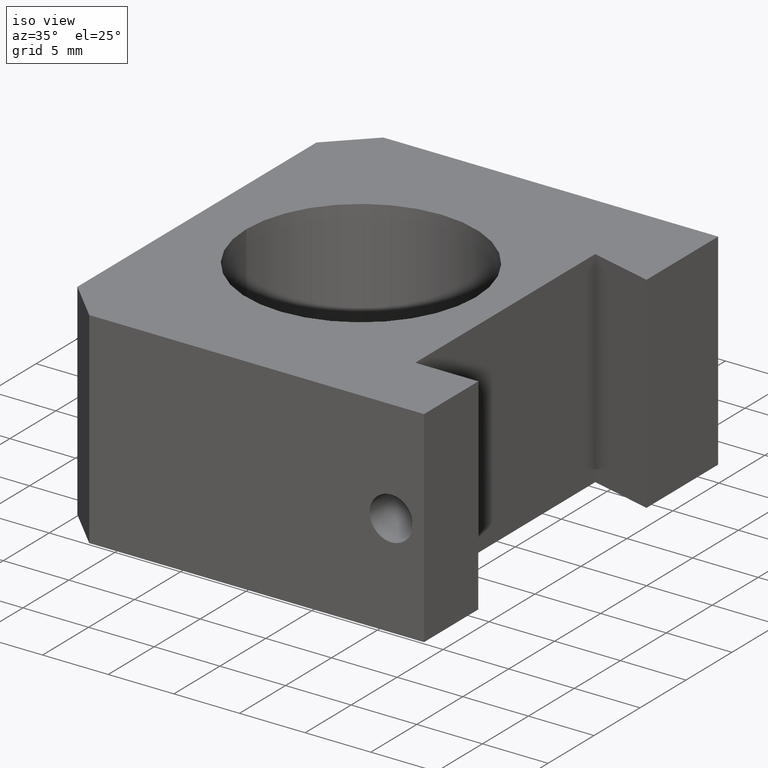
[diagram: clean part render]
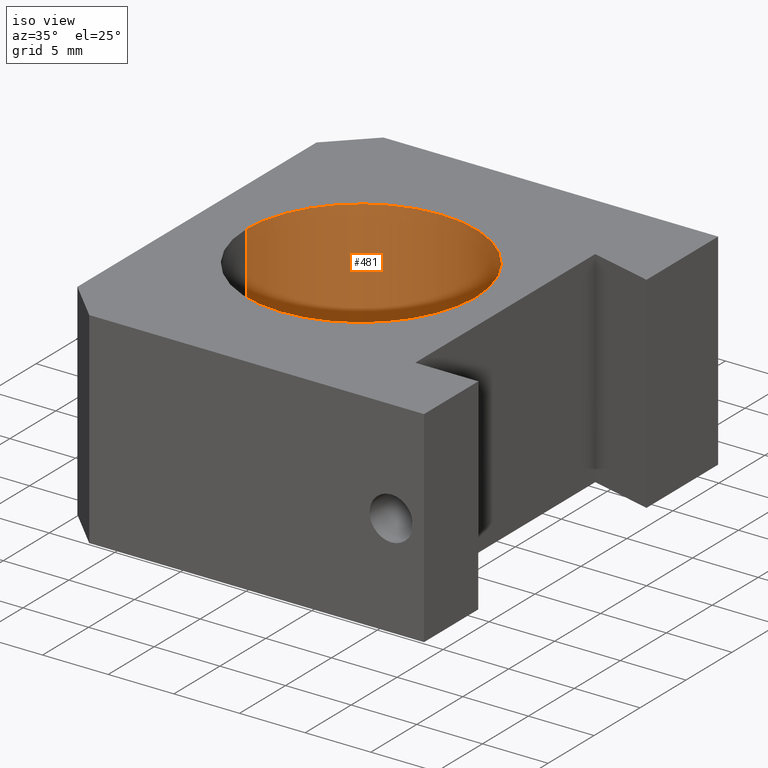
[diagram: same view with one face highlighted and labeled with its STEP entity id]
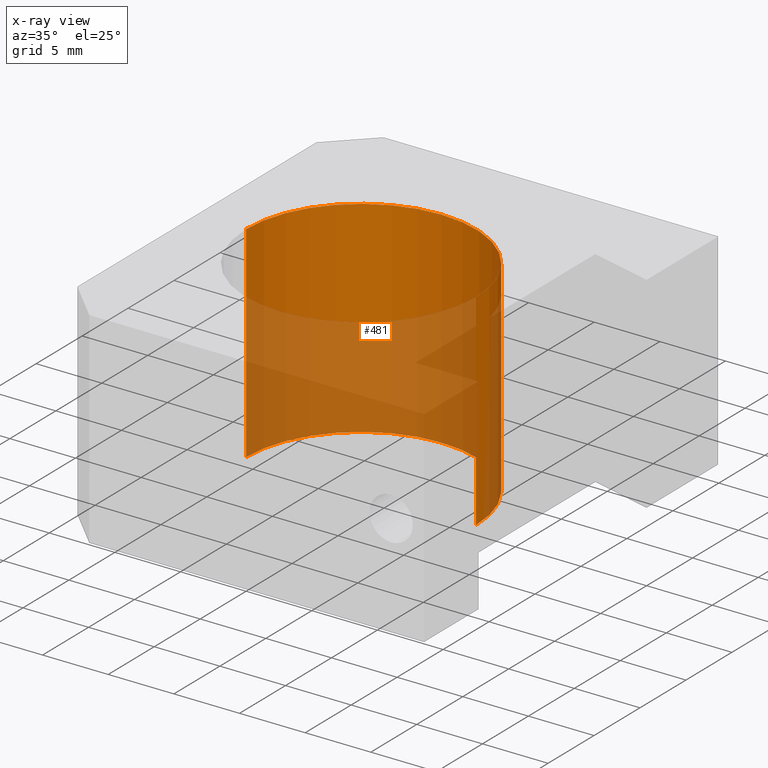
[diagram: x-ray of the same camera — body ghosted, the highlighted face saturated]
A machine part, iso view. The second image highlights one B-rep face of the part: STEP entity #481.
The next image is the same camera in x-ray: the body ghosted, the highlighted face saturated — about 54% of this face is hidden behind the body in this view.
In plain terms, the highlighted cylindrical surface (partial cylindrical patch) has radius 8.75 mm, axis along (-0, -0, 1).
Its self-contained STEP definition (entity closure, byte-faithful):
#3 = LINE ( 'NONE', #6, #301 ) ;
#6 = CARTESIAN_POINT ( 'NONE',  ( -10.49999999999999300, 1.071565949253933100E-015, 15.69999999999999900 ) ) ;
#35 = EDGE_CURVE ( 'NONE', #402, #293, #145, .T. ) ;
#36 = ORIENTED_EDGE ( 'NONE', *, *, #226, .F. ) ;
#40 = CYLINDRICAL_SURFACE ( 'NONE', #95, 8.749999999999994700 ) ;
#48 = CARTESIAN_POINT ( 'NONE',  ( -1.749999999999999800, 0.0000000000000000000, 15.69999999999999900 ) ) ;
#54 = CARTESIAN_POINT ( 'NONE',  ( -10.49999999999999300, 1.071565949253933100E-015, 0.0000000000000000000 ) ) ;
#81 = ORIENTED_EDGE ( 'NONE', *, *, #383, .T. ) ;
#86 = AXIS2_PLACEMENT_3D ( 'NONE', #550, #187, #506 ) ;
#95 = AXIS2_PLACEMENT_3D ( 'NONE', #48, #449, #307 ) ;
#103 = CARTESIAN_POINT ( 'NONE',  ( -10.49999999999999600, 1.071565949253933500E-015, 15.69999999999999900 ) ) ;
#111 = DIRECTION ( 'NONE',  ( -0.0000000000000000000, 0.0000000000000000000, 1.000000000000000000 ) ) ;
#140 = CARTESIAN_POINT ( 'NONE',  ( 6.999999999999993800, 0.0000000000000000000, 0.0000000000000000000 ) ) ;
#145 = LINE ( 'NONE', #373, #258 ) ;
#166 = CIRCLE ( 'NONE', #86, 8.749999999999998200 ) ;
#187 = DIRECTION ( 'NONE',  ( -0.0000000000000000000, -0.0000000000000000000, 1.000000000000000000 ) ) ;
#202 = EDGE_LOOP ( 'NONE', ( #206, #36, #440, #81 ) ) ;
#206 = ORIENTED_EDGE ( 'NONE', *, *, #436, .F. ) ;
#226 = EDGE_CURVE ( 'NONE', #402, #502, #487, .T. ) ;
#258 = VECTOR ( 'NONE', #282, 1000.000000000000000 ) ;
#282 = DIRECTION ( 'NONE',  ( -0.0000000000000000000, -0.0000000000000000000, 1.000000000000000000 ) ) ;
#293 = VERTEX_POINT ( 'NONE', #461 ) ;
#301 = VECTOR ( 'NONE', #310, 1000.000000000000000 ) ;
#307 = DIRECTION ( 'NONE',  ( 1.000000000000000000, 0.0000000000000000000, 0.0000000000000000000 ) ) ;
#310 = DIRECTION ( 'NONE',  ( -0.0000000000000000000, -0.0000000000000000000, 1.000000000000000000 ) ) ;
#350 = VERTEX_POINT ( 'NONE', #103 ) ;
#372 = DIRECTION ( 'NONE',  ( 1.000000000000000000, 0.0000000000000000000, 0.0000000000000000000 ) ) ;
#373 = CARTESIAN_POINT ( 'NONE',  ( 6.999999999999993800, 0.0000000000000000000, 15.69999999999999900 ) ) ;
#383 = EDGE_CURVE ( 'NONE', #293, #350, #166, .T. ) ;
#386 = AXIS2_PLACEMENT_3D ( 'NONE', #418, #111, #372 ) ;
#392 = FACE_OUTER_BOUND ( 'NONE', #202, .T. ) ;
#402 = VERTEX_POINT ( 'NONE', #140 ) ;
#418 = CARTESIAN_POINT ( 'NONE',  ( -1.749999999999999800, 0.0000000000000000000, 0.0000000000000000000 ) ) ;
#436 = EDGE_CURVE ( 'NONE', #502, #350, #3, .T. ) ;
#440 = ORIENTED_EDGE ( 'NONE', *, *, #35, .T. ) ;
#449 = DIRECTION ( 'NONE',  ( -0.0000000000000000000, -0.0000000000000000000, 1.000000000000000000 ) ) ;
#461 = CARTESIAN_POINT ( 'NONE',  ( 6.999999999999997300, 0.0000000000000000000, 15.69999999999999900 ) ) ;
#481 = ADVANCED_FACE ( 'NONE', ( #392 ), #40, .F. ) ;
#487 = CIRCLE ( 'NONE', #386, 8.749999999999994700 ) ;
#502 = VERTEX_POINT ( 'NONE', #54 ) ;
#506 = DIRECTION ( 'NONE',  ( 1.000000000000000000, 0.0000000000000000000, 0.0000000000000000000 ) ) ;
#550 = CARTESIAN_POINT ( 'NONE',  ( -1.749999999999999800, 0.0000000000000000000, 15.69999999999999900 ) ) ;